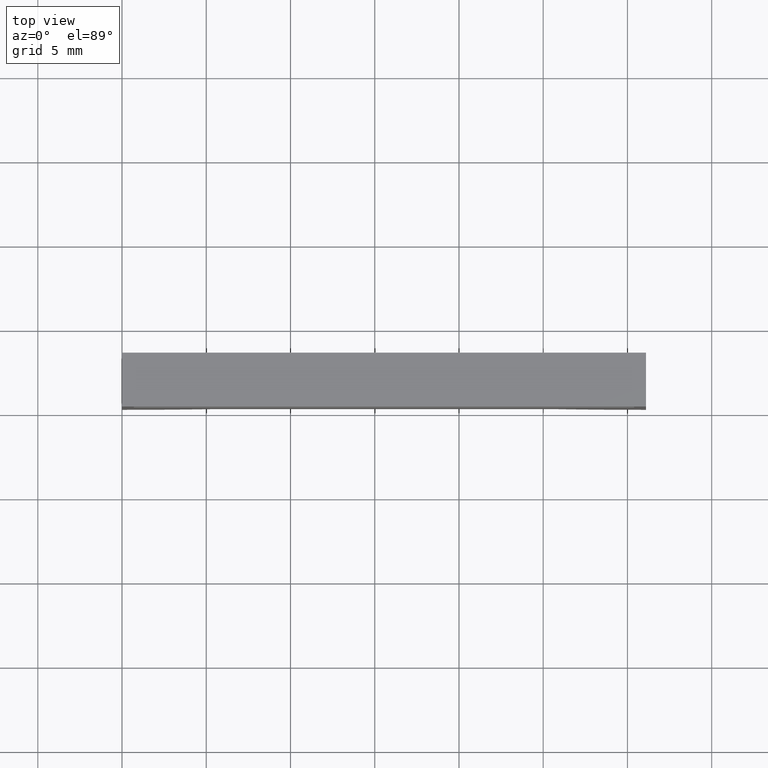
[diagram: clean part render]
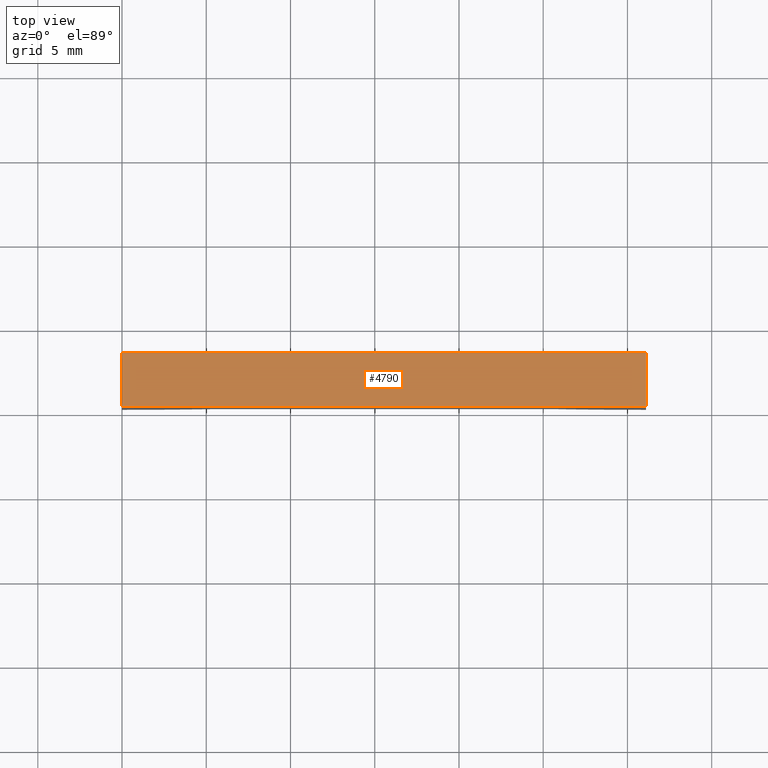
[diagram: same view with one face highlighted and labeled with its STEP entity id]
A machine part, top view. The second image highlights one B-rep face of the part: STEP entity #4790.
In plain terms, the highlighted planar face has unit normal (0, -0, 1).
Its self-contained STEP definition (entity closure, byte-faithful):
#4110=CARTESIAN_POINT('',(2.3855388607976,-5.97280981811659,
66.7099999999993));
#4120=VERTEX_POINT('',#4110);
#4290=CARTESIAN_POINT('',(2.3855388607976,-5.97280981811659,
35.6099999999983));
#4300=VERTEX_POINT('',#4290);
#4330=CARTESIAN_POINT('',(2.3855388607976,-5.97280981811659,
38.8749840000005));
#4340=DIRECTION('',(3.08148791101958E-33,-1.23259516440783E-32,-1.));
#4350=VECTOR('',#4340,1.);
#4360=LINE('',#4330,#4350);
#4370=EDGE_CURVE('',#4120,#4300,#4360,.T.);
#4490=CARTESIAN_POINT('',(2.4855388607976,-5.97280981811659,
66.0099999999993));
#4500=DIRECTION('',(3.79822709830392E-65,1.,-1.23259516440783E-32));
#4510=DIRECTION('',(-3.08148791101958E-33,1.23259516440783E-32,1.));
#4520=AXIS2_PLACEMENT_3D('',#4490,#4500,#4510);
#4530=PLANE('',#4520);
#4540=CARTESIAN_POINT('',(2.4855388607976,-5.97280981811659,
35.6099999999983));
#4550=DIRECTION('',(-1.,0.,-3.08148791101958E-33));
#4560=VECTOR('',#4550,1.);
#4570=LINE('',#4540,#4560);
#4580=CARTESIAN_POINT('',(5.5855388607976,-5.97280981811659,
35.6099999999983));
#4590=VERTEX_POINT('',#4580);
#4600=EDGE_CURVE('',#4590,#4300,#4570,.T.);
#4610=ORIENTED_EDGE('',*,*,#4600,.T.);
#4620=CARTESIAN_POINT('',(5.5855388607976,-5.97280981811659,
38.8749840000005));
#4630=DIRECTION('',(-3.08148791101958E-33,1.23259516440783E-32,1.));
#4640=VECTOR('',#4630,1.);
#4650=LINE('',#4620,#4640);
#4660=CARTESIAN_POINT('',(5.5855388607976,-5.97280981811659,
66.7099999999993));
#4670=VERTEX_POINT('',#4660);
#4680=EDGE_CURVE('',#4590,#4670,#4650,.T.);
#4690=ORIENTED_EDGE('',*,*,#4680,.F.);
#4700=CARTESIAN_POINT('',(5.4855388607976,-5.97280981811659,
66.7099999999993));
#4710=DIRECTION('',(1.,0.,3.08148791101958E-33));
#4720=VECTOR('',#4710,1.);
#4730=LINE('',#4700,#4720);
#4740=EDGE_CURVE('',#4120,#4670,#4730,.T.);
#4750=ORIENTED_EDGE('',*,*,#4740,.T.);
#4760=ORIENTED_EDGE('',*,*,#4370,.F.);
#4770=EDGE_LOOP('',(#4760,#4750,#4690,#4610));
#4780=FACE_OUTER_BOUND('',#4770,.T.);
#4790=ADVANCED_FACE('',(#4780),#4530,.T.);